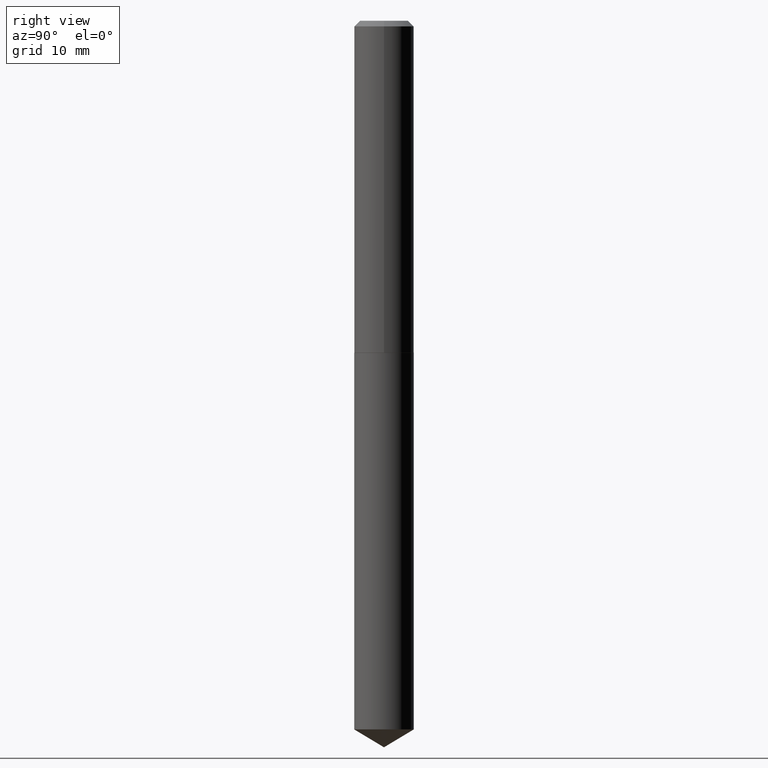
[diagram: clean part render]
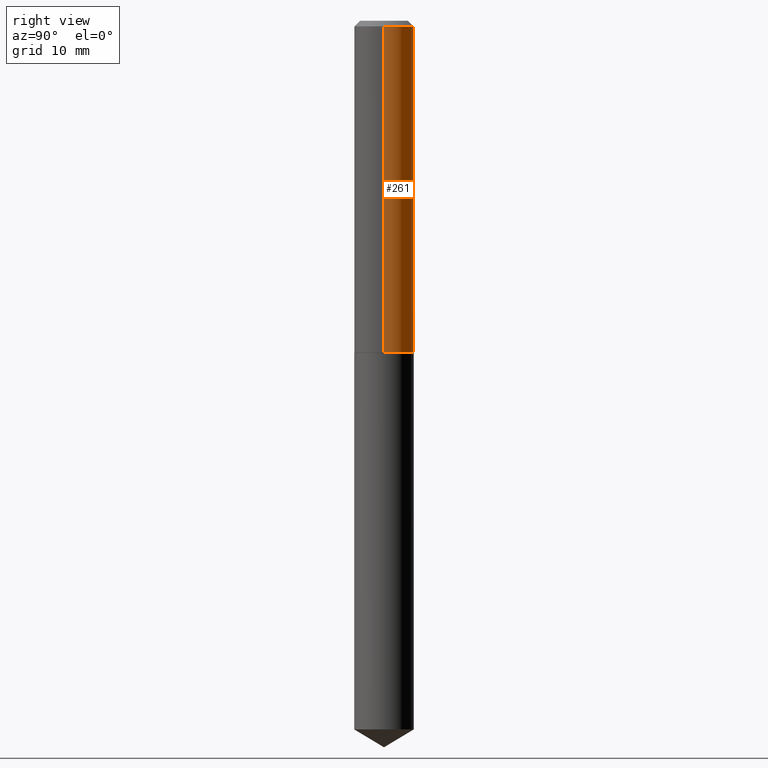
[diagram: same view with one face highlighted and labeled with its STEP entity id]
A machine part, right view. The second image highlights one B-rep face of the part: STEP entity #261.
In plain terms, the highlighted cylindrical surface (edge-blend (fillet) strip) has radius 4.1669 mm, axis along (-0, 0, 1).
Its self-contained STEP definition (entity closure, byte-faithful):
#10 = CARTESIAN_POINT ( 'NONE',  ( 0.1640500000000001124, -1.145555027274433043E-15, 7.999368000693238548E-30 ) ) ;
#26 = DIRECTION ( 'NONE',  ( 1.000000000000000000, -6.982962677686266711E-15, 0.000000000000000000 ) ) ;
#47 = AXIS2_PLACEMENT_3D ( 'NONE', #232, #230, #26 ) ;
#51 = DIRECTION ( 'NONE',  ( 1.000000000000000000, -6.982962677686268288E-15, 4.876176775795935793E-29 ) ) ;
#61 = ORIENTED_EDGE ( 'NONE', *, *, #383, .F. ) ;
#62 = DIRECTION ( 'NONE',  ( -2.445468806185136877E-29, 3.491481338843145188E-15, 1.000000000000000000 ) ) ;
#69 = LINE ( 'NONE', #10, #225 ) ;
#76 = VERTEX_POINT ( 'NONE', #216 ) ;
#79 = CARTESIAN_POINT ( 'NONE',  ( -0.1640500000000001957, -5.215385936855287718E-15, -1.827599999999999891 ) ) ;
#88 = EDGE_CURVE ( 'NONE', #305, #76, #69, .T. ) ;
#93 = CARTESIAN_POINT ( 'NONE',  ( -0.1640500000000000291, -2.079424685339844945E-15, -0.03125000000000022898 ) ) ;
#106 = DIRECTION ( 'NONE',  ( -2.445468806185136597E-29, 3.491481338843145583E-15, 1.000000000000000000 ) ) ;
#120 = CARTESIAN_POINT ( 'NONE',  ( -0.1640500000000001124, 1.165645358014445154E-15, -8.069513015563179171E-30 ) ) ;
#122 = EDGE_CURVE ( 'NONE', #318, #150, #271, .T. ) ;
#128 = CARTESIAN_POINT ( 'NONE',  ( 0.1640500000000001957, -7.526586322144166309E-15, -1.827599999999999891 ) ) ;
#150 = VERTEX_POINT ( 'NONE', #93 ) ;
#183 = DIRECTION ( 'NONE',  ( -2.445468806185136877E-29, 3.491481338843145188E-15, 1.000000000000000000 ) ) ;
#191 = CYLINDRICAL_SURFACE ( 'NONE', #388, 0.1640500000000001124 ) ;
#216 = CARTESIAN_POINT ( 'NONE',  ( 0.1640500000000000291, -1.254663819113281355E-15, -0.03125000000000022898 ) ) ;
#225 = VECTOR ( 'NONE', #62, 39.37007874015748143 ) ;
#230 = DIRECTION ( 'NONE',  ( -2.445468806185136597E-29, 3.491481338843145583E-15, 1.000000000000000000 ) ) ;
#232 = CARTESIAN_POINT ( 'NONE',  ( 7.642090019328607041E-31, -1.091087918388490883E-16, -0.03125000000000022898 ) ) ;
#247 = ORIENTED_EDGE ( 'NONE', *, *, #122, .T. ) ;
#250 = DIRECTION ( 'NONE',  ( -2.445468806185136597E-29, 3.491481338843145583E-15, 1.000000000000000000 ) ) ;
#253 = VECTOR ( 'NONE', #183, 39.37007874015748143 ) ;
#255 = EDGE_CURVE ( 'NONE', #305, #318, #258, .T. ) ;
#258 = CIRCLE ( 'NONE', #361, 0.1640500000000001957 ) ;
#261 = ADVANCED_FACE ( 'NONE', ( #337 ), #191, .T. ) ;
#271 = LINE ( 'NONE', #120, #253 ) ;
#302 = ORIENTED_EDGE ( 'NONE', *, *, #88, .F. ) ;
#305 = VERTEX_POINT ( 'NONE', #128 ) ;
#317 = EDGE_LOOP ( 'NONE', ( #350, #247, #61, #302 ) ) ;
#318 = VERTEX_POINT ( 'NONE', #79 ) ;
#332 = CARTESIAN_POINT ( 'NONE',  ( 4.469338790183955624E-29, -6.381031294869733069E-15, -1.827599999999999891 ) ) ;
#337 = FACE_OUTER_BOUND ( 'NONE', #317, .T. ) ;
#340 = CARTESIAN_POINT ( 'NONE',  ( 0.000000000000000000, 0.000000000000000000, 0.000000000000000000 ) ) ;
#344 = CIRCLE ( 'NONE', #47, 0.1640500000000000291 ) ;
#350 = ORIENTED_EDGE ( 'NONE', *, *, #255, .T. ) ;
#361 = AXIS2_PLACEMENT_3D ( 'NONE', #332, #250, #378 ) ;
#378 = DIRECTION ( 'NONE',  ( 1.000000000000000000, -6.982962677686266711E-15, 0.000000000000000000 ) ) ;
#383 = EDGE_CURVE ( 'NONE', #76, #150, #344, .T. ) ;
#388 = AXIS2_PLACEMENT_3D ( 'NONE', #340, #106, #51 ) ;